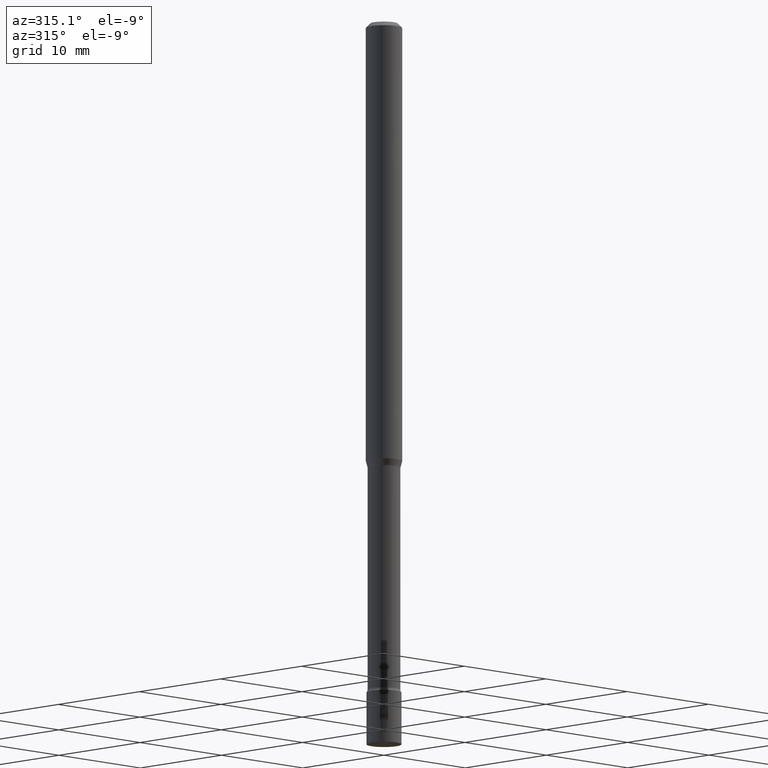
[diagram: clean part render]
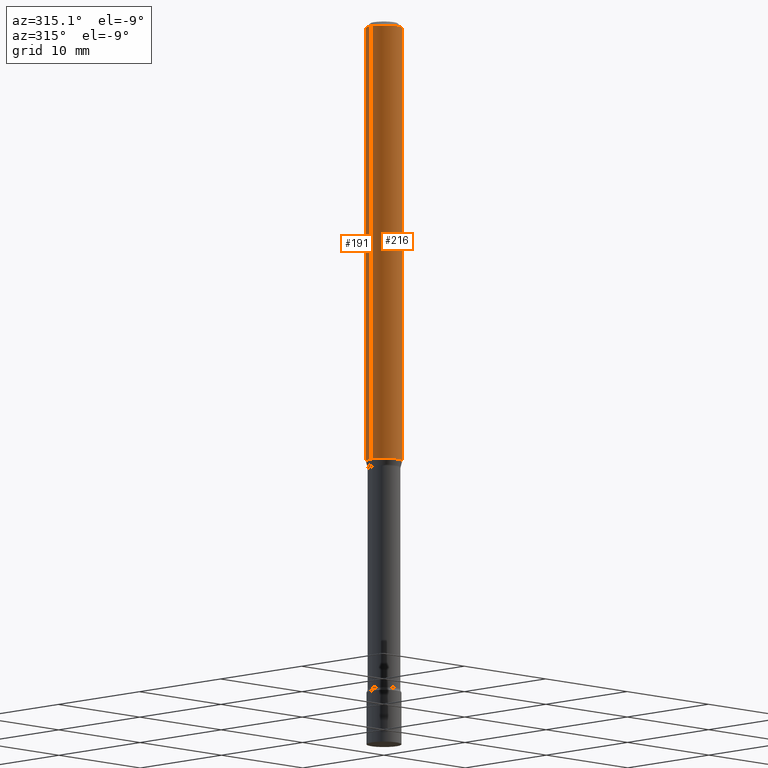
[diagram: same view with one multi-face feature highlighted, each face labeled with its STEP entity id]
A machine part, auxiliary view. The highlighted faces form ONE feature: a constant-radius fillet chain: 2 tangent blend faces with common blend radius 1.5875 mm. The faces share edges in the B-rep.
Their STEP definitions:
[1] entity #191 (Cylinder):
#11 = EDGE_CURVE ( 'NONE', #13, #464, #395, .T. ) ;
#12 = DIRECTION ( 'NONE',  ( 1.000000000000000000, -6.982962677686266711E-15, 0.000000000000000000 ) ) ;
#13 = VERTEX_POINT ( 'NONE', #42 ) ;
#23 = CARTESIAN_POINT ( 'NONE',  ( -0.06250000000000000000, 4.440892098500626162E-16, -3.074334431409316114E-30 ) ) ;
#33 = EDGE_CURVE ( 'NONE', #65, #464, #268, .T. ) ;
#42 = CARTESIAN_POINT ( 'NONE',  ( -0.06250000000000000000, -4.853306698891908951E-15, -1.517234490073829711 ) ) ;
#55 = DIRECTION ( 'NONE',  ( -2.445468806185136877E-29, 3.491481338843145188E-15, 1.000000000000000000 ) ) ;
#65 = VERTEX_POINT ( 'NONE', #355 ) ;
#70 = VERTEX_POINT ( 'NONE', #201 ) ;
#75 = CYLINDRICAL_SURFACE ( 'NONE', #373, 0.06250000000000000000 ) ;
#132 = AXIS2_PLACEMENT_3D ( 'NONE', #315, #391, #12 ) ;
#166 = LINE ( 'NONE', #445, #313 ) ;
#191 = ADVANCED_FACE ( 'NONE', ( #260 ), #75, .T. ) ;
#201 = CARTESIAN_POINT ( 'NONE',  ( 0.06250000000000000000, -5.733831076097364025E-15, -1.517234490073829711 ) ) ;
#203 = DIRECTION ( 'NONE',  ( 1.000000000000000000, -6.982962677686262766E-15, 0.000000000000000000 ) ) ;
#224 = ORIENTED_EDGE ( 'NONE', *, *, #319, .T. ) ;
#242 = DIRECTION ( 'NONE',  ( -2.445468806185136597E-29, 3.491481338843145583E-15, 1.000000000000000000 ) ) ;
#253 = DIRECTION ( 'NONE',  ( -2.445468806185136597E-29, 3.491481338843145583E-15, 1.000000000000000000 ) ) ;
#260 = FACE_OUTER_BOUND ( 'NONE', #350, .T. ) ;
#268 = CIRCLE ( 'NONE', #132, 0.06250000000000000000 ) ;
#313 = VECTOR ( 'NONE', #55, 39.37007874015748143 ) ;
#315 = CARTESIAN_POINT ( 'NONE',  ( 3.668203209277712094E-31, -5.237222008264728876E-17, -0.01500000000000003067 ) ) ;
#319 = EDGE_CURVE ( 'NONE', #70, #13, #497, .T. ) ;
#350 = EDGE_LOOP ( 'NONE', ( #224, #456, #377, #438 ) ) ;
#355 = CARTESIAN_POINT ( 'NONE',  ( 0.06250000000000000000, -4.888073874380389458E-16, -0.01500000000000003067 ) ) ;
#373 = AXIS2_PLACEMENT_3D ( 'NONE', #386, #242, #472 ) ;
#377 = ORIENTED_EDGE ( 'NONE', *, *, #33, .F. ) ;
#386 = CARTESIAN_POINT ( 'NONE',  ( 0.000000000000000000, 0.000000000000000000, 0.000000000000000000 ) ) ;
#391 = DIRECTION ( 'NONE',  ( -2.445468806185136597E-29, 3.491481338843145583E-15, 1.000000000000000000 ) ) ;
#395 = LINE ( 'NONE', #23, #475 ) ;
#413 = CARTESIAN_POINT ( 'NONE',  ( -0.06250000000000000000, -2.230794854562247693E-15, -0.01500000000000003067 ) ) ;
#417 = DIRECTION ( 'NONE',  ( -2.445468806185136877E-29, 3.491481338843145188E-15, 1.000000000000000000 ) ) ;
#438 = ORIENTED_EDGE ( 'NONE', *, *, #502, .F. ) ;
#445 = CARTESIAN_POINT ( 'NONE',  ( 0.06250000000000000000, -4.364351673553916694E-16, 3.047610484872459871E-30 ) ) ;
#456 = ORIENTED_EDGE ( 'NONE', *, *, #11, .T. ) ;
#464 = VERTEX_POINT ( 'NONE', #413 ) ;
#470 = CARTESIAN_POINT ( 'NONE',  ( 3.710349617143762616E-29, -5.297395908741972356E-15, -1.517234490073829711 ) ) ;
#472 = DIRECTION ( 'NONE',  ( 1.000000000000000000, -6.982962677686266711E-15, 4.876176775795935793E-29 ) ) ;
#475 = VECTOR ( 'NONE', #417, 39.37007874015748143 ) ;
#497 = CIRCLE ( 'NONE', #510, 0.06250000000000000000 ) ;
#502 = EDGE_CURVE ( 'NONE', #70, #65, #166, .T. ) ;
#510 = AXIS2_PLACEMENT_3D ( 'NONE', #470, #253, #203 ) ;
[2] entity #216 (Cylinder):
#11 = EDGE_CURVE ( 'NONE', #13, #464, #395, .T. ) ;
#13 = VERTEX_POINT ( 'NONE', #42 ) ;
#17 = FACE_OUTER_BOUND ( 'NONE', #460, .T. ) ;
#23 = CARTESIAN_POINT ( 'NONE',  ( -0.06250000000000000000, 4.440892098500626162E-16, -3.074334431409316114E-30 ) ) ;
#42 = CARTESIAN_POINT ( 'NONE',  ( -0.06250000000000000000, -4.853306698891908951E-15, -1.517234490073829711 ) ) ;
#55 = DIRECTION ( 'NONE',  ( -2.445468806185136877E-29, 3.491481338843145188E-15, 1.000000000000000000 ) ) ;
#61 = AXIS2_PLACEMENT_3D ( 'NONE', #169, #337, #296 ) ;
#65 = VERTEX_POINT ( 'NONE', #355 ) ;
#70 = VERTEX_POINT ( 'NONE', #201 ) ;
#84 = DIRECTION ( 'NONE',  ( 1.000000000000000000, -6.982962677686266711E-15, 4.876176775795935793E-29 ) ) ;
#89 = ORIENTED_EDGE ( 'NONE', *, *, #467, .T. ) ;
#94 = DIRECTION ( 'NONE',  ( -2.445468806185136597E-29, 3.491481338843145583E-15, 1.000000000000000000 ) ) ;
#137 = CARTESIAN_POINT ( 'NONE',  ( 3.668203209277712094E-31, -5.237222008264728876E-17, -0.01500000000000003067 ) ) ;
#166 = LINE ( 'NONE', #445, #313 ) ;
#169 = CARTESIAN_POINT ( 'NONE',  ( 3.710349617143762616E-29, -5.297395908741972356E-15, -1.517234490073829711 ) ) ;
#173 = AXIS2_PLACEMENT_3D ( 'NONE', #137, #94, #231 ) ;
#186 = CIRCLE ( 'NONE', #61, 0.06250000000000000000 ) ;
#201 = CARTESIAN_POINT ( 'NONE',  ( 0.06250000000000000000, -5.733831076097364025E-15, -1.517234490073829711 ) ) ;
#216 = ADVANCED_FACE ( 'NONE', ( #17 ), #463, .T. ) ;
#221 = ORIENTED_EDGE ( 'NONE', *, *, #489, .F. ) ;
#231 = DIRECTION ( 'NONE',  ( 1.000000000000000000, -6.982962677686266711E-15, 0.000000000000000000 ) ) ;
#279 = ORIENTED_EDGE ( 'NONE', *, *, #502, .T. ) ;
#296 = DIRECTION ( 'NONE',  ( 1.000000000000000000, -6.982962677686262766E-15, 0.000000000000000000 ) ) ;
#310 = ORIENTED_EDGE ( 'NONE', *, *, #11, .F. ) ;
#313 = VECTOR ( 'NONE', #55, 39.37007874015748143 ) ;
#337 = DIRECTION ( 'NONE',  ( -2.445468806185136597E-29, 3.491481338843145583E-15, 1.000000000000000000 ) ) ;
#355 = CARTESIAN_POINT ( 'NONE',  ( 0.06250000000000000000, -4.888073874380389458E-16, -0.01500000000000003067 ) ) ;
#395 = LINE ( 'NONE', #23, #475 ) ;
#413 = CARTESIAN_POINT ( 'NONE',  ( -0.06250000000000000000, -2.230794854562247693E-15, -0.01500000000000003067 ) ) ;
#417 = DIRECTION ( 'NONE',  ( -2.445468806185136877E-29, 3.491481338843145188E-15, 1.000000000000000000 ) ) ;
#419 = AXIS2_PLACEMENT_3D ( 'NONE', #455, #504, #84 ) ;
#445 = CARTESIAN_POINT ( 'NONE',  ( 0.06250000000000000000, -4.364351673553916694E-16, 3.047610484872459871E-30 ) ) ;
#455 = CARTESIAN_POINT ( 'NONE',  ( 0.000000000000000000, 0.000000000000000000, 0.000000000000000000 ) ) ;
#460 = EDGE_LOOP ( 'NONE', ( #310, #89, #279, #221 ) ) ;
#463 = CYLINDRICAL_SURFACE ( 'NONE', #419, 0.06250000000000000000 ) ;
#464 = VERTEX_POINT ( 'NONE', #413 ) ;
#467 = EDGE_CURVE ( 'NONE', #13, #70, #186, .T. ) ;
#475 = VECTOR ( 'NONE', #417, 39.37007874015748143 ) ;
#487 = CIRCLE ( 'NONE', #173, 0.06250000000000000000 ) ;
#489 = EDGE_CURVE ( 'NONE', #464, #65, #487, .T. ) ;
#502 = EDGE_CURVE ( 'NONE', #70, #65, #166, .T. ) ;
#504 = DIRECTION ( 'NONE',  ( -2.445468806185136597E-29, 3.491481338843145583E-15, 1.000000000000000000 ) ) ;